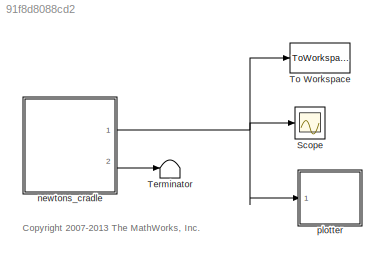
MODEL slx_91f8d8088cd2
KIND model
CONFIG AbsTol = auto
CONFIG EnableMultiTasking = off
CONFIG FixedStep = auto
CONFIG MaxStep = auto
CONFIG MinStep = auto
CONFIG RelTol = 1e-3
CONFIG SampleTimeConstraint = Unconstrained
CONFIG Solver = ode45
CONFIG SolverName = ode45
CONFIG StartTime = 0.0
CONFIG StopTime = 5
BLOCK [Scope] Scope
  NumInputPorts = 1
  Ports = [1]
  ScopeSpecificationString = Simulink.scopes.TimeScopeBlockCfg('CurrentConfiguration', extmgr.ConfigurationSet(extmgr.Configuration('Core','General UI',true),extmgr.Configuration('Core','Source UI',true),extmgr.Configuration('Sources','WiredSimulink',true,'DataLoggingSaveFormat','StructureWithTime','DataLoggingLimitDataPoints',true,'DataLoggingDecimation','1'),extmgr.Configuration('Visuals','Time Domain',true,'SerializedDispl...<+1709ch>
BLOCK [Terminator] Terminator
BLOCK [ToWorkspace] To Workspace
  MaxDataPoints = inf
  Ports = [1]
  SampleTime = -1
  VariableName = y
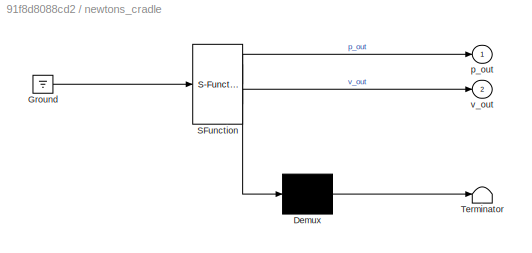
BLOCK [SubSystem] newtons_cradle
  ErrorFcn = Stateflow.Translate.translate
  PermitHierarchicalResolution = ExplicitOnly
  Ports = [0, 2]
  RequestExecContextInheritance = off
  SFBlockType = Chart
  TreatAsAtomicUnit = on
  Variant = off
BLOCK [Demux] newtons_cradle/ Demux 
  Outputs = 1
  Ports = [1, 1]
BLOCK [Ground] newtons_cradle/ Ground 
BLOCK [S-Function] newtons_cradle/ SFunction 
  EnableBusSupport = off
  FunctionName = sf_sfun
  PortCounts = [1 3]
  Ports = [1, 3]
  SFcnIsStateOwnerBlock = off
  SFunctionDeploymentMode = off
  Tag = Stateflow S-Function sf_newtons_cradle 1
BLOCK [Terminator] newtons_cradle/ Terminator 
BLOCK [Outport] newtons_cradle/p_out
  IconDisplay = Port number
BLOCK [Outport] newtons_cradle/v_out
  IconDisplay = Port number
  Port = 2
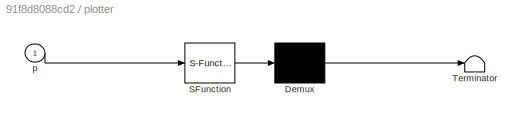
BLOCK [SubSystem] plotter
  ErrorFcn = Stateflow.Translate.translate
  PermitHierarchicalResolution = ExplicitOnly
  Ports = [1]
  RequestExecContextInheritance = off
  SFBlockType = Chart
  TreatAsAtomicUnit = on
  Variant = off
BLOCK [Demux] plotter/ Demux 
  Outputs = 1
  Ports = [1, 1]
BLOCK [S-Function] plotter/ SFunction 
  EnableBusSupport = off
  FunctionName = sf_sfun
  PortCounts = [1 1]
  Ports = [1, 1]
  SFcnIsStateOwnerBlock = off
  SFunctionDeploymentMode = off
  Tag = Stateflow S-Function sf_newtons_cradle 2
BLOCK [Terminator] plotter/ Terminator 
BLOCK [Inport] plotter/p
  IconDisplay = Port number
ANNOTATION (root): <copyright redacted>
NET newtons_cradle:1 -> Scope:1, To Workspace:1, plotter:1
LINE newtons_cradle:2 -> Terminator:1
note: NET lines group one-source signal fan-out (src -> all destinations, sorted); 1:1 wires keep LINE
CHART newtons_cradle states=3 transitions=13
  STATE_LABEL 'FreeDynamics\ndu:\n  p_out = p;\n  v_out = v;\n  p_dot = v;\n  v_dot = -g/l*sin(p);'
  STATE_LABEL 'resetPositionsAndVelocities'
  STATE_LABEL '{i=0;}'
  STATE_LABEL '[i < k-1]'
  STATE_LABEL '{i++;}'
  STATE_LABEL '[p[i] < p[i+1]]\n{\n// swap positions\ntmp = p[i];\np[i] = p[i+1];\np[i+1] = tmp;\n// swap velocities\ntmp = v[i];\nv[i] = v[i+1];\nv[i+1] = tmp;\n}'
  STATE_LABEL 'collision = isCollisionPossible'
  STATE_LABEL '{i=0;}'
  STATE_LABEL '[i < k-1]'
  STATE_LABEL '{i++;}'
  STATE_LABEL '{\ncollision = 0;\n}'
  STATE_LABEL '[p[i] < p[i+1]]\n{\ncollision = 1;\n}'
CHART plotter states=1 transitions=0
  STATE_LABEL 'A\ndu:\nml.sf_newtons_cradle_plotter(p);'
